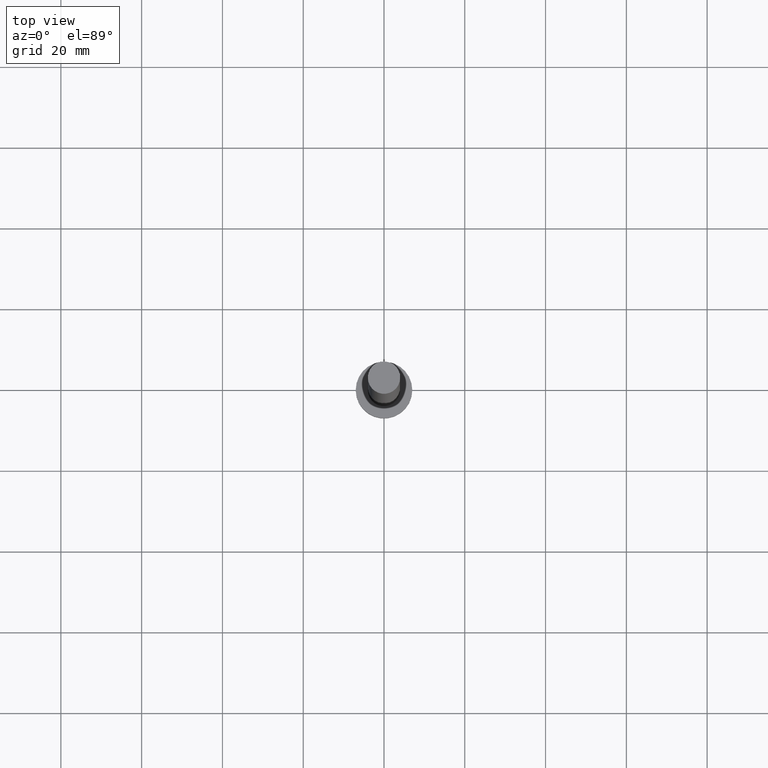
[diagram: clean part render]
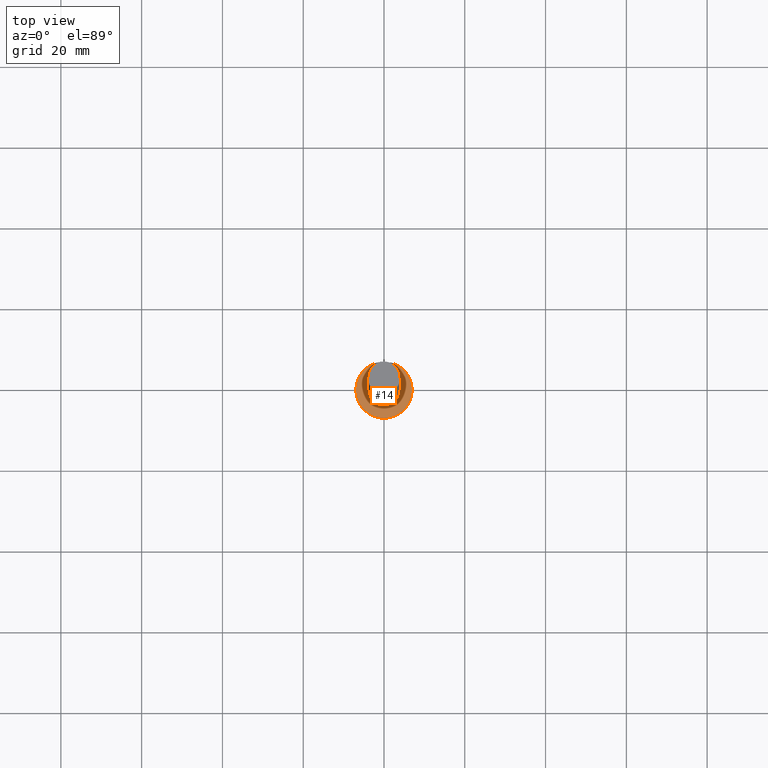
[diagram: same view with one face highlighted and labeled with its STEP entity id]
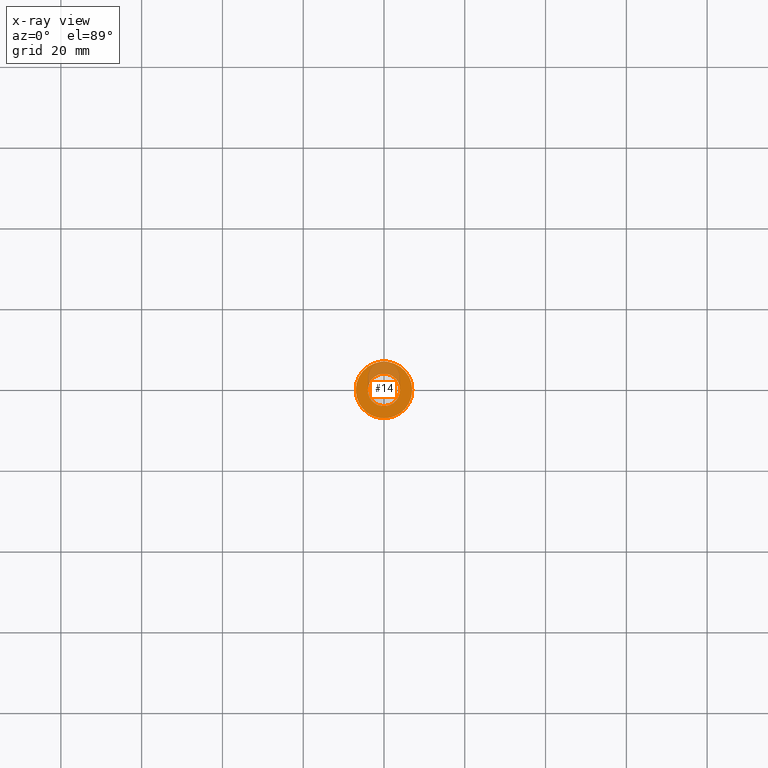
[diagram: x-ray of the same camera — body ghosted, the highlighted face saturated]
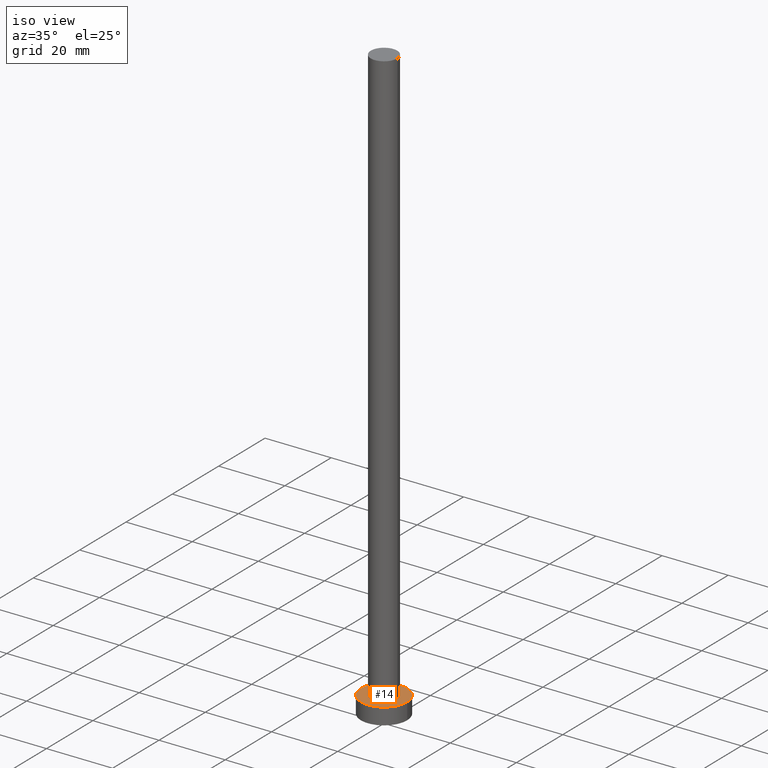
[diagram: same view with one face highlighted and labeled with its STEP entity id]
A machine part, top view. The second image highlights one B-rep face of the part: STEP entity #14.
The next image is the same camera in x-ray: the body ghosted, the highlighted face saturated — about 24% of this face is hidden behind the body in this view.
A second angle (iso view) of the same face is appended — the face is thin or edge-on in the first view.
In plain terms, the highlighted planar face has unit normal (0, 0, 1).
Its self-contained STEP definition (entity closure, byte-faithful):
#8 = DIRECTION ( 'NONE',  ( 0.000000000000000000, 0.000000000000000000, 1.000000000000000000 ) ) ;
#9 = DIRECTION ( 'NONE',  ( 1.000000000000000000, 0.000000000000000000, 0.000000000000000000 ) ) ;
#10 = EDGE_CURVE ( 'NONE', #231, #213, #184, .T. ) ;
#14 = ADVANCED_FACE ( 'NONE', ( #117, #198 ), #41, .T. ) ;
#16 = CIRCLE ( 'NONE', #242, 7.000000000000000000 ) ;
#19 = AXIS2_PLACEMENT_3D ( 'NONE', #88, #29, #9 ) ;
#29 = DIRECTION ( 'NONE',  ( 0.000000000000000000, 0.000000000000000000, 1.000000000000000000 ) ) ;
#40 = ORIENTED_EDGE ( 'NONE', *, *, #69, .T. ) ;
#41 = PLANE ( 'NONE',  #232 ) ;
#42 = DIRECTION ( 'NONE',  ( 0.000000000000000000, 0.000000000000000000, 1.000000000000000000 ) ) ;
#43 = DIRECTION ( 'NONE',  ( 0.000000000000000000, 0.000000000000000000, 1.000000000000000000 ) ) ;
#55 = VERTEX_POINT ( 'NONE', #111 ) ;
#56 = AXIS2_PLACEMENT_3D ( 'NONE', #65, #43, #152 ) ;
#62 = CARTESIAN_POINT ( 'NONE',  ( 0.000000000000000000, 0.000000000000000000, 5.000000000000000000 ) ) ;
#63 = DIRECTION ( 'NONE',  ( 1.000000000000000000, 0.000000000000000000, -0.000000000000000000 ) ) ;
#65 = CARTESIAN_POINT ( 'NONE',  ( 0.000000000000000000, 0.000000000000000000, 5.000000000000000000 ) ) ;
#69 = EDGE_CURVE ( 'NONE', #55, #158, #118, .T. ) ;
#71 = CIRCLE ( 'NONE', #56, 4.000000000000000000 ) ;
#79 = EDGE_LOOP ( 'NONE', ( #214, #183 ) ) ;
#83 = EDGE_LOOP ( 'NONE', ( #119, #40 ) ) ;
#88 = CARTESIAN_POINT ( 'NONE',  ( 0.000000000000000000, 0.000000000000000000, 5.000000000000000000 ) ) ;
#92 = DIRECTION ( 'NONE',  ( 1.000000000000000000, 0.000000000000000000, 0.000000000000000000 ) ) ;
#111 = CARTESIAN_POINT ( 'NONE',  ( 7.000000000000000000, 8.572527594031473190E-16, 5.000000000000000000 ) ) ;
#117 = FACE_BOUND ( 'NONE', #79, .T. ) ;
#118 = CIRCLE ( 'NONE', #19, 7.000000000000000000 ) ;
#119 = ORIENTED_EDGE ( 'NONE', *, *, #174, .T. ) ;
#134 = AXIS2_PLACEMENT_3D ( 'NONE', #159, #234, #144 ) ;
#137 = CARTESIAN_POINT ( 'NONE',  ( 4.000000000000000000, 4.898587196589412829E-16, 5.000000000000000000 ) ) ;
#144 = DIRECTION ( 'NONE',  ( 1.000000000000000000, 0.000000000000000000, 0.000000000000000000 ) ) ;
#146 = EDGE_CURVE ( 'NONE', #213, #231, #71, .T. ) ;
#148 = CARTESIAN_POINT ( 'NONE',  ( -7.000000000000000000, 0.000000000000000000, 5.000000000000000000 ) ) ;
#152 = DIRECTION ( 'NONE',  ( 1.000000000000000000, 0.000000000000000000, 0.000000000000000000 ) ) ;
#158 = VERTEX_POINT ( 'NONE', #148 ) ;
#159 = CARTESIAN_POINT ( 'NONE',  ( 0.000000000000000000, 0.000000000000000000, 5.000000000000000000 ) ) ;
#174 = EDGE_CURVE ( 'NONE', #158, #55, #16, .T. ) ;
#183 = ORIENTED_EDGE ( 'NONE', *, *, #10, .F. ) ;
#184 = CIRCLE ( 'NONE', #134, 4.000000000000000000 ) ;
#198 = FACE_OUTER_BOUND ( 'NONE', #83, .T. ) ;
#200 = CARTESIAN_POINT ( 'NONE',  ( -4.000000000000000000, 0.000000000000000000, 5.000000000000000000 ) ) ;
#213 = VERTEX_POINT ( 'NONE', #200 ) ;
#214 = ORIENTED_EDGE ( 'NONE', *, *, #146, .F. ) ;
#220 = CARTESIAN_POINT ( 'NONE',  ( 0.000000000000000000, 0.000000000000000000, 5.000000000000000000 ) ) ;
#231 = VERTEX_POINT ( 'NONE', #137 ) ;
#232 = AXIS2_PLACEMENT_3D ( 'NONE', #62, #42, #63 ) ;
#234 = DIRECTION ( 'NONE',  ( 0.000000000000000000, 0.000000000000000000, 1.000000000000000000 ) ) ;
#242 = AXIS2_PLACEMENT_3D ( 'NONE', #220, #8, #92 ) ;